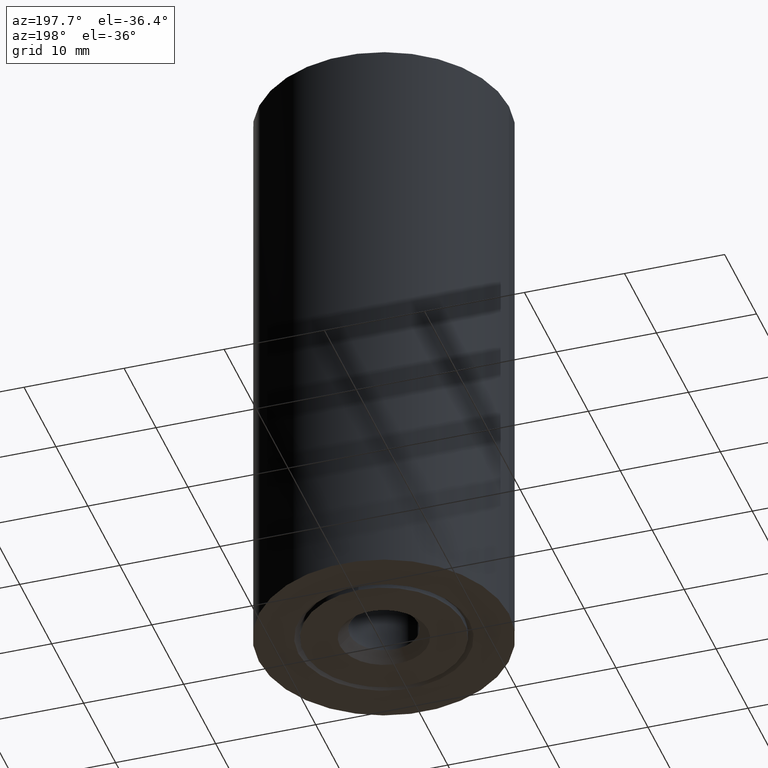
[diagram: clean part render]
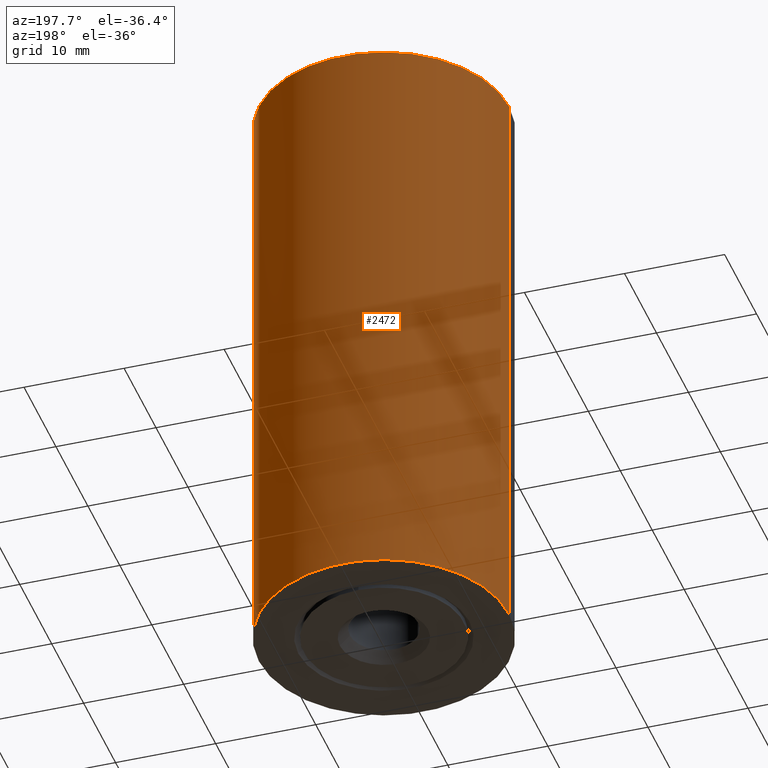
[diagram: same view with one face highlighted and labeled with its STEP entity id]
A machine part, auxiliary view. The second image highlights one B-rep face of the part: STEP entity #2472.
In plain terms, the highlighted cylindrical surface (partial cylindrical patch) has radius 12.5 mm, axis along (0, 0, 1).
Its self-contained STEP definition (entity closure, byte-faithful):
#108 = VERTEX_POINT ( 'NONE', #4628 ) ;
#168 = FACE_OUTER_BOUND ( 'NONE', #7320, .T. ) ;
#640 = DIRECTION ( 'NONE',  ( -0.0000000000000000000, -0.0000000000000000000, 1.000000000000000000 ) ) ;
#896 = CARTESIAN_POINT ( 'NONE',  ( 0.0000000000000000000, 0.0000000000000000000, 0.0000000000000000000 ) ) ;
#1056 = VERTEX_POINT ( 'NONE', #13225 ) ;
#1090 = ORIENTED_EDGE ( 'NONE', *, *, #12299, .T. ) ;
#1146 = LINE ( 'NONE', #10959, #6362 ) ;
#1562 = EDGE_CURVE ( 'NONE', #10046, #2409, #1146, .T. ) ;
#2361 = AXIS2_PLACEMENT_3D ( 'NONE', #3975, #9314, #2897 ) ;
#2409 = VERTEX_POINT ( 'NONE', #12187 ) ;
#2472 = ADVANCED_FACE ( 'NONE', ( #168 ), #5858, .T. ) ;
#2600 = DIRECTION ( 'NONE',  ( 1.000000000000000000, 0.0000000000000000000, 0.0000000000000000000 ) ) ;
#2690 = CARTESIAN_POINT ( 'NONE',  ( 12.50000000000000000, 0.0000000000000000000, -55.00000000000000700 ) ) ;
#2705 = AXIS2_PLACEMENT_3D ( 'NONE', #3594, #11855, #2600 ) ;
#2897 = DIRECTION ( 'NONE',  ( 1.000000000000000000, 0.0000000000000000000, 0.0000000000000000000 ) ) ;
#3013 = ORIENTED_EDGE ( 'NONE', *, *, #9953, .F. ) ;
#3594 = CARTESIAN_POINT ( 'NONE',  ( 0.0000000000000000000, 0.0000000000000000000, 4.999999999999990200 ) ) ;
#3975 = CARTESIAN_POINT ( 'NONE',  ( 0.0000000000000000000, 0.0000000000000000000, -55.00000000000000700 ) ) ;
#4628 = CARTESIAN_POINT ( 'NONE',  ( -12.50000000000000000, 1.530808498934191500E-015, 4.999999999999990200 ) ) ;
#5195 = LINE ( 'NONE', #6905, #10949 ) ;
#5858 = CYLINDRICAL_SURFACE ( 'NONE', #7700, 12.50000000000000000 ) ;
#6362 = VECTOR ( 'NONE', #11048, 1000.000000000000000 ) ;
#6905 = CARTESIAN_POINT ( 'NONE',  ( -12.50000000000000000, 1.530808498934191500E-015, 0.0000000000000000000 ) ) ;
#7000 = ORIENTED_EDGE ( 'NONE', *, *, #10525, .T. ) ;
#7291 = DIRECTION ( 'NONE',  ( 1.000000000000000000, 0.0000000000000000000, 0.0000000000000000000 ) ) ;
#7320 = EDGE_LOOP ( 'NONE', ( #7000, #1090, #3013, #11329 ) ) ;
#7700 = AXIS2_PLACEMENT_3D ( 'NONE', #896, #9372, #7291 ) ;
#9314 = DIRECTION ( 'NONE',  ( -0.0000000000000000000, -0.0000000000000000000, 1.000000000000000000 ) ) ;
#9372 = DIRECTION ( 'NONE',  ( -0.0000000000000000000, -0.0000000000000000000, 1.000000000000000000 ) ) ;
#9953 = EDGE_CURVE ( 'NONE', #2409, #108, #11794, .T. ) ;
#10046 = VERTEX_POINT ( 'NONE', #2690 ) ;
#10525 = EDGE_CURVE ( 'NONE', #10046, #1056, #13100, .T. ) ;
#10949 = VECTOR ( 'NONE', #640, 1000.000000000000000 ) ;
#10959 = CARTESIAN_POINT ( 'NONE',  ( 12.50000000000000000, 0.0000000000000000000, 0.0000000000000000000 ) ) ;
#11048 = DIRECTION ( 'NONE',  ( -0.0000000000000000000, -0.0000000000000000000, 1.000000000000000000 ) ) ;
#11329 = ORIENTED_EDGE ( 'NONE', *, *, #1562, .F. ) ;
#11794 = CIRCLE ( 'NONE', #2705, 12.50000000000000000 ) ;
#11855 = DIRECTION ( 'NONE',  ( -0.0000000000000000000, -0.0000000000000000000, 1.000000000000000000 ) ) ;
#12187 = CARTESIAN_POINT ( 'NONE',  ( 12.50000000000000000, 0.0000000000000000000, 4.999999999999990200 ) ) ;
#12299 = EDGE_CURVE ( 'NONE', #1056, #108, #5195, .T. ) ;
#13100 = CIRCLE ( 'NONE', #2361, 12.50000000000000000 ) ;
#13225 = CARTESIAN_POINT ( 'NONE',  ( -12.50000000000000000, 1.530808498934191500E-015, -55.00000000000000700 ) ) ;